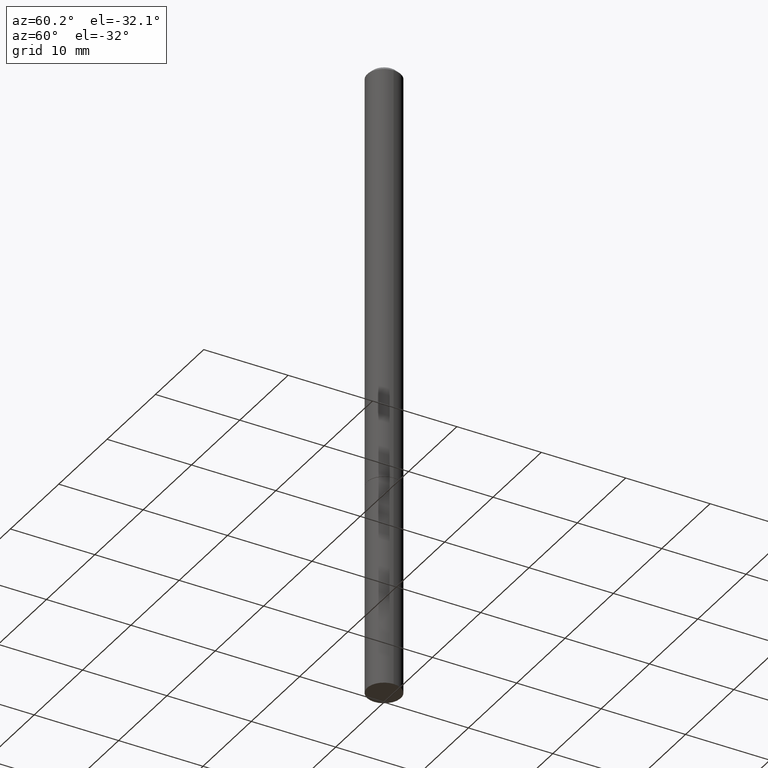
[diagram: clean part render]
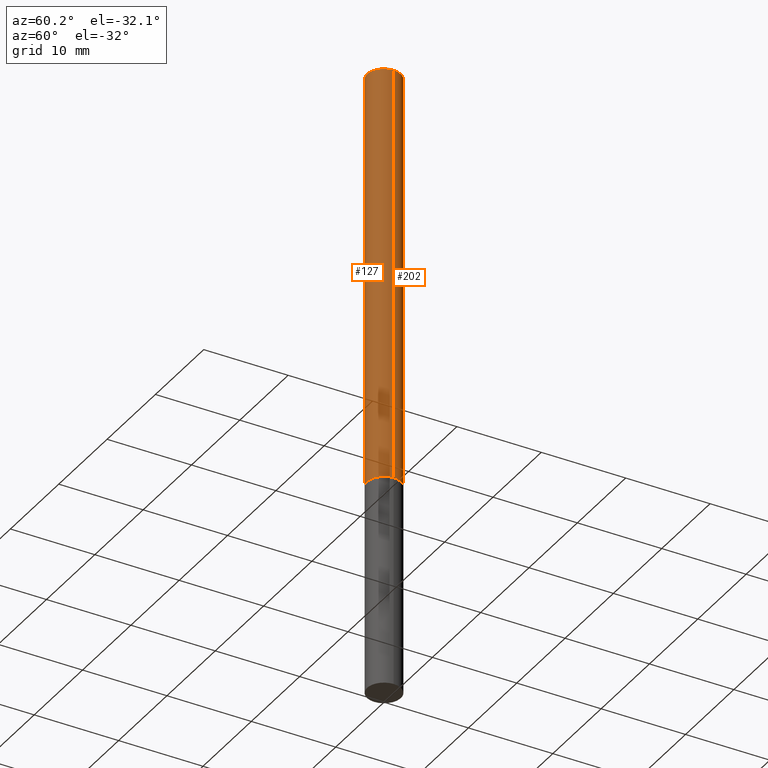
[diagram: same view with one multi-face feature highlighted, each face labeled with its STEP entity id]
A machine part, auxiliary view. The highlighted faces form ONE feature: a constant-radius fillet chain: 2 tangent blend faces with common blend radius 2.0002 mm. The faces share edges in the B-rep.
Their STEP definitions:
[1] entity #127 (Cylinder):
#5 = VECTOR ( 'NONE', #321, 39.37007874015748143 ) ;
#6 = CARTESIAN_POINT ( 'NONE',  ( 0.07875000000000000056, -7.419397845041680468E-15, -1.967499999999999805 ) ) ;
#12 = DIRECTION ( 'NONE',  ( 1.000000000000000000, -6.982962677686266711E-15, 0.000000000000000000 ) ) ;
#13 = VERTEX_POINT ( 'NONE', #6 ) ;
#22 = FACE_OUTER_BOUND ( 'NONE', #132, .T. ) ;
#24 = CIRCLE ( 'NONE', #323, 0.07875000000000000056 ) ;
#26 = DIRECTION ( 'NONE',  ( -2.445468806185136877E-29, 3.491481338843145188E-15, 1.000000000000000000 ) ) ;
#29 = VECTOR ( 'NONE', #26, 39.37007874015748143 ) ;
#44 = ORIENTED_EDGE ( 'NONE', *, *, #137, .T. ) ;
#46 = EDGE_CURVE ( 'NONE', #252, #70, #349, .T. ) ;
#47 = EDGE_CURVE ( 'NONE', #70, #68, #220, .T. ) ;
#57 = CARTESIAN_POINT ( 'NONE',  ( -0.07875000000000000056, -2.910107176064290492E-15, -1.967499999999999805 ) ) ;
#68 = VERTEX_POINT ( 'NONE', #280 ) ;
#70 = VERTEX_POINT ( 'NONE', #110 ) ;
#71 = AXIS2_PLACEMENT_3D ( 'NONE', #85, #177, #319 ) ;
#85 = CARTESIAN_POINT ( 'NONE',  ( 0.000000000000000000, 0.000000000000000000, 0.000000000000000000 ) ) ;
#98 = CARTESIAN_POINT ( 'NONE',  ( 4.890937612370276662E-31, -6.982962677686296539E-17, -0.02000000000000001776 ) ) ;
#110 = CARTESIAN_POINT ( 'NONE',  ( -0.07874999999999973688, 4.800786840909286670E-16, -0.02000000000000001776 ) ) ;
#127 = ADVANCED_FACE ( 'NONE', ( #22 ), #142, .T. ) ;
#128 = CARTESIAN_POINT ( 'NONE',  ( -0.07874999999999987566, 5.595524044110780128E-16, -3.873661383575732186E-30 ) ) ;
#132 = EDGE_LOOP ( 'NONE', ( #304, #44, #194, #138 ) ) ;
#137 = EDGE_CURVE ( 'NONE', #252, #13, #24, .T. ) ;
#138 = ORIENTED_EDGE ( 'NONE', *, *, #47, .F. ) ;
#142 = CYLINDRICAL_SURFACE ( 'NONE', #71, 0.07874999999999987566 ) ;
#147 = EDGE_CURVE ( 'NONE', #13, #68, #289, .T. ) ;
#148 = DIRECTION ( 'NONE',  ( 1.000000000000000000, -6.982962677686261977E-15, 0.000000000000000000 ) ) ;
#152 = DIRECTION ( 'NONE',  ( -2.445468806185136597E-29, 3.491481338843145583E-15, 1.000000000000000000 ) ) ;
#174 = AXIS2_PLACEMENT_3D ( 'NONE', #98, #277, #12 ) ;
#177 = DIRECTION ( 'NONE',  ( -2.445468806185136597E-29, 3.491481338843145583E-15, 1.000000000000000000 ) ) ;
#184 = CARTESIAN_POINT ( 'NONE',  ( 4.811459876169255671E-29, -6.869489534173887122E-15, -1.967499999999999805 ) ) ;
#194 = ORIENTED_EDGE ( 'NONE', *, *, #147, .T. ) ;
#220 = CIRCLE ( 'NONE', #174, 0.07874999999999973688 ) ;
#252 = VERTEX_POINT ( 'NONE', #57 ) ;
#277 = DIRECTION ( 'NONE',  ( -2.445468806185136597E-29, 3.491481338843145583E-15, 1.000000000000000000 ) ) ;
#280 = CARTESIAN_POINT ( 'NONE',  ( 0.07874999999999973688, -6.100938441013694129E-16, -0.02000000000000001776 ) ) ;
#289 = LINE ( 'NONE', #296, #29 ) ;
#296 = CARTESIAN_POINT ( 'NONE',  ( 0.07874999999999987566, -5.499083108677926554E-16, 3.839989210939293411E-30 ) ) ;
#304 = ORIENTED_EDGE ( 'NONE', *, *, #46, .F. ) ;
#319 = DIRECTION ( 'NONE',  ( 1.000000000000000000, -6.982962677686266711E-15, 4.876176775795935793E-29 ) ) ;
#321 = DIRECTION ( 'NONE',  ( -2.445468806185136877E-29, 3.491481338843145188E-15, 1.000000000000000000 ) ) ;
#323 = AXIS2_PLACEMENT_3D ( 'NONE', #184, #152, #148 ) ;
#349 = LINE ( 'NONE', #128, #5 ) ;
[2] entity #202 (Cylinder):
#5 = VECTOR ( 'NONE', #321, 39.37007874015748143 ) ;
#6 = CARTESIAN_POINT ( 'NONE',  ( 0.07875000000000000056, -7.419397845041680468E-15, -1.967499999999999805 ) ) ;
#13 = VERTEX_POINT ( 'NONE', #6 ) ;
#26 = DIRECTION ( 'NONE',  ( -2.445468806185136877E-29, 3.491481338843145188E-15, 1.000000000000000000 ) ) ;
#29 = VECTOR ( 'NONE', #26, 39.37007874015748143 ) ;
#46 = EDGE_CURVE ( 'NONE', #252, #70, #349, .T. ) ;
#51 = ORIENTED_EDGE ( 'NONE', *, *, #147, .F. ) ;
#56 = CARTESIAN_POINT ( 'NONE',  ( 4.811459876169255671E-29, -6.869489534173887122E-15, -1.967499999999999805 ) ) ;
#57 = CARTESIAN_POINT ( 'NONE',  ( -0.07875000000000000056, -2.910107176064290492E-15, -1.967499999999999805 ) ) ;
#62 = EDGE_CURVE ( 'NONE', #13, #252, #161, .T. ) ;
#66 = EDGE_CURVE ( 'NONE', #68, #70, #121, .T. ) ;
#68 = VERTEX_POINT ( 'NONE', #280 ) ;
#70 = VERTEX_POINT ( 'NONE', #110 ) ;
#102 = ORIENTED_EDGE ( 'NONE', *, *, #66, .F. ) ;
#110 = CARTESIAN_POINT ( 'NONE',  ( -0.07874999999999973688, 4.800786840909286670E-16, -0.02000000000000001776 ) ) ;
#115 = DIRECTION ( 'NONE',  ( 1.000000000000000000, -6.982962677686266711E-15, 0.000000000000000000 ) ) ;
#121 = CIRCLE ( 'NONE', #167, 0.07874999999999973688 ) ;
#128 = CARTESIAN_POINT ( 'NONE',  ( -0.07874999999999987566, 5.595524044110780128E-16, -3.873661383575732186E-30 ) ) ;
#147 = EDGE_CURVE ( 'NONE', #13, #68, #289, .T. ) ;
#150 = DIRECTION ( 'NONE',  ( 1.000000000000000000, -6.982962677686266711E-15, 4.876176775795935793E-29 ) ) ;
#151 = AXIS2_PLACEMENT_3D ( 'NONE', #237, #233, #150 ) ;
#161 = CIRCLE ( 'NONE', #266, 0.07875000000000000056 ) ;
#166 = CARTESIAN_POINT ( 'NONE',  ( 4.890937612370276662E-31, -6.982962677686296539E-17, -0.02000000000000001776 ) ) ;
#167 = AXIS2_PLACEMENT_3D ( 'NONE', #166, #360, #115 ) ;
#171 = DIRECTION ( 'NONE',  ( -2.445468806185136597E-29, 3.491481338843145583E-15, 1.000000000000000000 ) ) ;
#202 = ADVANCED_FACE ( 'NONE', ( #270 ), #295, .T. ) ;
#233 = DIRECTION ( 'NONE',  ( -2.445468806185136597E-29, 3.491481338843145583E-15, 1.000000000000000000 ) ) ;
#237 = CARTESIAN_POINT ( 'NONE',  ( 0.000000000000000000, 0.000000000000000000, 0.000000000000000000 ) ) ;
#252 = VERTEX_POINT ( 'NONE', #57 ) ;
#258 = DIRECTION ( 'NONE',  ( 1.000000000000000000, -6.982962677686261977E-15, 0.000000000000000000 ) ) ;
#266 = AXIS2_PLACEMENT_3D ( 'NONE', #56, #171, #258 ) ;
#270 = FACE_OUTER_BOUND ( 'NONE', #272, .T. ) ;
#272 = EDGE_LOOP ( 'NONE', ( #322, #301, #102, #51 ) ) ;
#280 = CARTESIAN_POINT ( 'NONE',  ( 0.07874999999999973688, -6.100938441013694129E-16, -0.02000000000000001776 ) ) ;
#289 = LINE ( 'NONE', #296, #29 ) ;
#295 = CYLINDRICAL_SURFACE ( 'NONE', #151, 0.07874999999999987566 ) ;
#296 = CARTESIAN_POINT ( 'NONE',  ( 0.07874999999999987566, -5.499083108677926554E-16, 3.839989210939293411E-30 ) ) ;
#301 = ORIENTED_EDGE ( 'NONE', *, *, #46, .T. ) ;
#321 = DIRECTION ( 'NONE',  ( -2.445468806185136877E-29, 3.491481338843145188E-15, 1.000000000000000000 ) ) ;
#322 = ORIENTED_EDGE ( 'NONE', *, *, #62, .T. ) ;
#349 = LINE ( 'NONE', #128, #5 ) ;
#360 = DIRECTION ( 'NONE',  ( -2.445468806185136597E-29, 3.491481338843145583E-15, 1.000000000000000000 ) ) ;